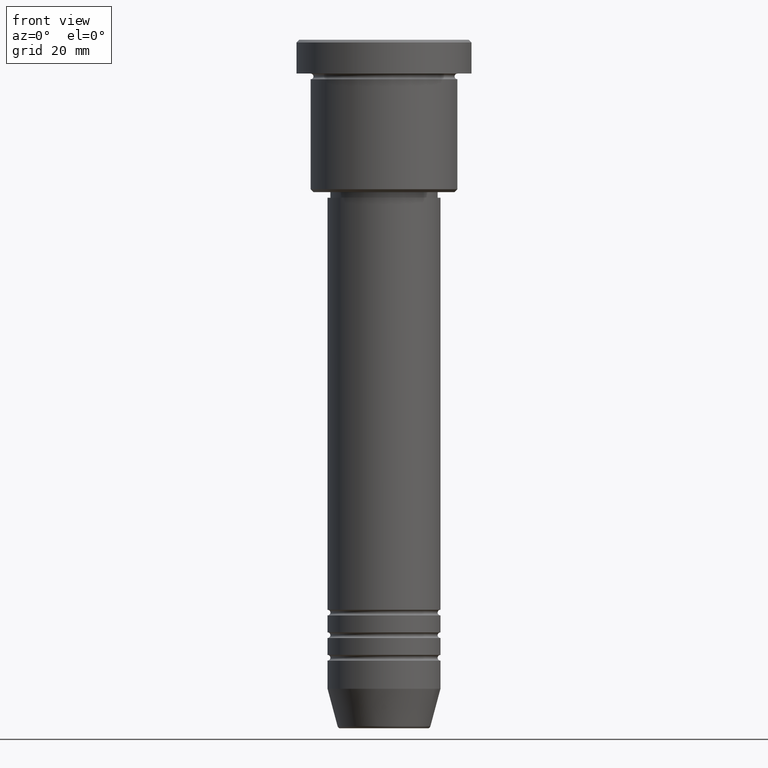
[diagram: clean part render]
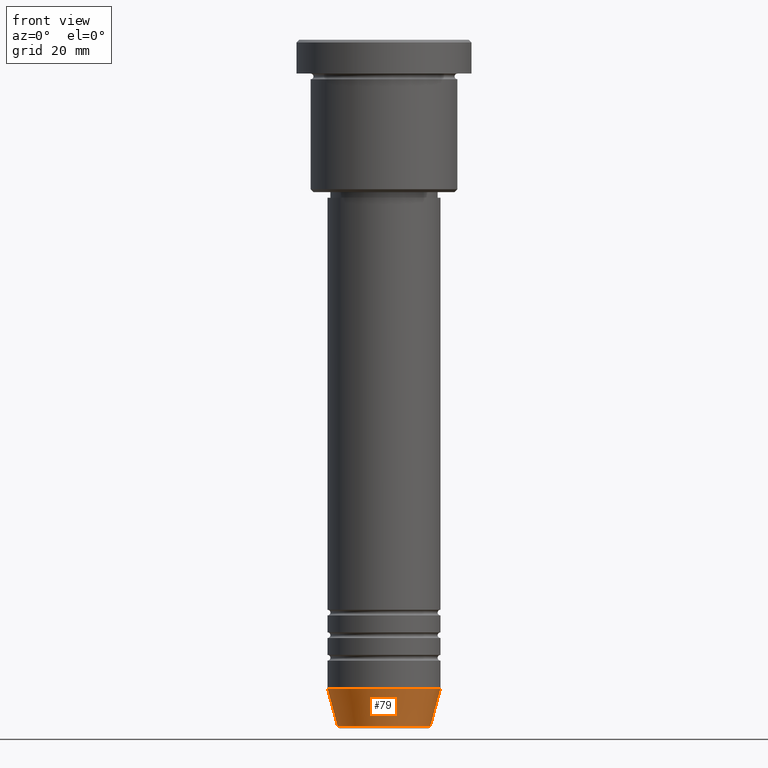
[diagram: same view with one face highlighted and labeled with its STEP entity id]
A machine part, front view. The second image highlights one B-rep face of the part: STEP entity #79.
In plain terms, the highlighted conical surface has half-angle 15 deg.
Its self-contained STEP definition (entity closure, byte-faithful):
#79 = ADVANCED_FACE ( 'NONE', ( #936 ), #308, .T. ) ;
#109 = CIRCLE ( 'NONE', #1140, 10.00000000000000000 ) ;
#119 = EDGE_CURVE ( 'NONE', #280, #773, #409, .T. ) ;
#213 = CARTESIAN_POINT ( 'NONE',  ( 0.000000000000000000, 0.000000000000000000, -115.0000000000000000 ) ) ;
#228 = DIRECTION ( 'NONE',  ( 0.2588190451025211281, 0.000000000000000000, 0.9659258262890680902 ) ) ;
#268 = AXIS2_PLACEMENT_3D ( 'NONE', #961, #342, #508 ) ;
#275 = VERTEX_POINT ( 'NONE', #730 ) ;
#280 = VERTEX_POINT ( 'NONE', #1012 ) ;
#302 = ORIENTED_EDGE ( 'NONE', *, *, #774, .F. ) ;
#308 = CONICAL_SURFACE ( 'NONE', #456, 10.00000000000000000, 0.2617993877991498519 ) ;
#342 = DIRECTION ( 'NONE',  ( -0.000000000000000000, -0.000000000000000000, 1.000000000000000000 ) ) ;
#347 = VECTOR ( 'NONE', #349, 1000.000000000000114 ) ;
#349 = DIRECTION ( 'NONE',  ( -0.2588190451025211281, 3.169619151431769872E-17, 0.9659258262890680902 ) ) ;
#380 = DIRECTION ( 'NONE',  ( 1.000000000000000000, 0.000000000000000000, 0.000000000000000000 ) ) ;
#409 = LINE ( 'NONE', #1046, #743 ) ;
#456 = AXIS2_PLACEMENT_3D ( 'NONE', #507, #497, #1143 ) ;
#463 = CARTESIAN_POINT ( 'NONE',  ( -10.00000000000000000, 1.224646799147353256E-15, -115.0000000000000000 ) ) ;
#469 = CARTESIAN_POINT ( 'NONE',  ( 10.00000000000000000, 0.000000000000000000, -115.0000000000000000 ) ) ;
#497 = DIRECTION ( 'NONE',  ( -0.000000000000000000, -0.000000000000000000, 1.000000000000000000 ) ) ;
#507 = CARTESIAN_POINT ( 'NONE',  ( 0.000000000000000000, 0.000000000000000000, -115.0000000000000000 ) ) ;
#508 = DIRECTION ( 'NONE',  ( 1.000000000000000000, 0.000000000000000000, 0.000000000000000000 ) ) ;
#546 = ORIENTED_EDGE ( 'NONE', *, *, #1006, .T. ) ;
#579 = DIRECTION ( 'NONE',  ( -0.000000000000000000, -0.000000000000000000, 1.000000000000000000 ) ) ;
#717 = LINE ( 'NONE', #891, #347 ) ;
#728 = CIRCLE ( 'NONE', #268, 8.223655072137191269 ) ;
#730 = CARTESIAN_POINT ( 'NONE',  ( -8.223655072137191269, 1.115877042642912054E-15, -121.6294095225512564 ) ) ;
#743 = VECTOR ( 'NONE', #228, 1000.000000000000114 ) ;
#773 = VERTEX_POINT ( 'NONE', #469 ) ;
#774 = EDGE_CURVE ( 'NONE', #1097, #773, #109, .T. ) ;
#887 = ORIENTED_EDGE ( 'NONE', *, *, #1028, .F. ) ;
#891 = CARTESIAN_POINT ( 'NONE',  ( -10.00000000000000000, 1.224646799147353256E-15, -115.0000000000000000 ) ) ;
#936 = FACE_OUTER_BOUND ( 'NONE', #953, .T. ) ;
#953 = EDGE_LOOP ( 'NONE', ( #887, #546, #1099, #302 ) ) ;
#961 = CARTESIAN_POINT ( 'NONE',  ( 0.000000000000000000, 0.000000000000000000, -121.6294095225512564 ) ) ;
#1006 = EDGE_CURVE ( 'NONE', #275, #280, #728, .T. ) ;
#1012 = CARTESIAN_POINT ( 'NONE',  ( 8.223655072137191269, 0.000000000000000000, -121.6294095225512564 ) ) ;
#1028 = EDGE_CURVE ( 'NONE', #275, #1097, #717, .T. ) ;
#1046 = CARTESIAN_POINT ( 'NONE',  ( 10.00000000000000000, 0.000000000000000000, -115.0000000000000000 ) ) ;
#1097 = VERTEX_POINT ( 'NONE', #463 ) ;
#1099 = ORIENTED_EDGE ( 'NONE', *, *, #119, .T. ) ;
#1140 = AXIS2_PLACEMENT_3D ( 'NONE', #213, #579, #380 ) ;
#1143 = DIRECTION ( 'NONE',  ( 1.000000000000000000, 0.000000000000000000, 0.000000000000000000 ) ) ;